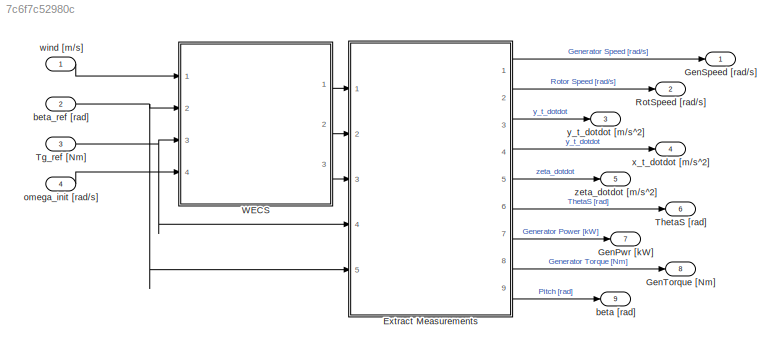
MODEL slx_7c6f7c52980c
KIND model
CONFIG AbsTol = auto
CONFIG EnableMultiTasking = off
CONFIG FixedStep = DT
CONFIG MaxStep = auto
CONFIG MinStep = auto
CONFIG RelTol = 1e-3
CONFIG SampleTimeConstraint = Unconstrained
CONFIG Solver = FixedStepAuto
CONFIG SolverName = FixedStepAuto
CONFIG StartTime = 0.0
CONFIG StopTime = 10.0
BLOCK [Outport]  RotSpeed [rad//s]
  IconDisplay = Port number
  Port = 2
  VectorParamsAs1DForOutWhenUnconnected = off
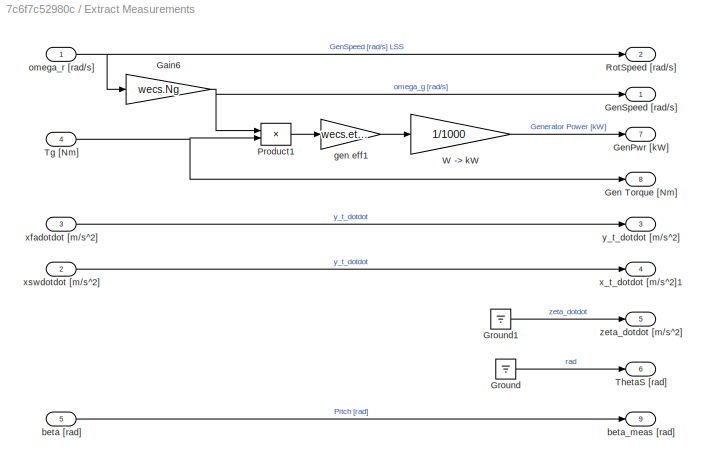
BLOCK [SubSystem] Extract Measurements
  Ports = [5, 9]
  RequestExecContextInheritance = off
BLOCK [Outport] Extract Measurements/ RotSpeed [rad//s]
  IconDisplay = Port number
  Port = 2
  VectorParamsAs1DForOutWhenUnconnected = off
BLOCK [Gain] Extract Measurements/Gain6
  Gain = wecs.Ng
  OutDataTypeStr = Inherit: Inherit via internal rule
  ParamDataTypeStr = Inherit: Inherit via internal rule
  SaturateOnIntegerOverflow = off
BLOCK [Outport] Extract Measurements/Gen Torque [Nm]  
  IconDisplay = Port number
  Port = 8
  VectorParamsAs1DForOutWhenUnconnected = off
BLOCK [Outport] Extract Measurements/GenPwr [kW]
  IconDisplay = Port number
  Port = 7
  VectorParamsAs1DForOutWhenUnconnected = off
BLOCK [Outport] Extract Measurements/GenSpeed [rad//s] 
  IconDisplay = Port number
  VectorParamsAs1DForOutWhenUnconnected = off
BLOCK [Ground] Extract Measurements/Ground
BLOCK [Ground] Extract Measurements/Ground1
BLOCK [Product] Extract Measurements/Product1
  InputSameDT = off
  OutDataTypeStr = Inherit: Inherit via internal rule
  Ports = [2, 1]
  SaturateOnIntegerOverflow = off
BLOCK [Inport] Extract Measurements/Tg [Nm]
  IconDisplay = Port number
  Port = 4
BLOCK [Outport] Extract Measurements/ThetaS [rad]
  IconDisplay = Port number
  Port = 6
  VectorParamsAs1DForOutWhenUnconnected = off
BLOCK [Gain] Extract Measurements/W -> kW
  Gain = 1/1000
  OutDataTypeStr = Inherit: Inherit via internal rule
  ParamDataTypeStr = Inherit: Inherit via internal rule
  SaturateOnIntegerOverflow = off
BLOCK [Inport] Extract Measurements/beta [rad]
  IconDisplay = Port number
  Port = 5
BLOCK [Outport] Extract Measurements/beta_meas [rad]
  IconDisplay = Port number
  Port = 9
  VectorParamsAs1DForOutWhenUnconnected = off
BLOCK [Gain] Extract Measurements/gen eff1
  Gain = wecs.etag
  OutDataTypeStr = Inherit: Inherit via internal rule
  ParamDataTypeStr = Inherit: Inherit via internal rule
  SaturateOnIntegerOverflow = off
BLOCK [Inport] Extract Measurements/omega_r [rad//s] 
  IconDisplay = Port number
BLOCK [Outport] Extract Measurements/x_t_dotdot [m//s^2]1
  IconDisplay = Port number
  Port = 4
  VectorParamsAs1DForOutWhenUnconnected = off
BLOCK [Inport] Extract Measurements/xfadotdot [m//s^2]
  IconDisplay = Port number
  Port = 3
BLOCK [Inport] Extract Measurements/xswdotdot [m//s^2]
  IconDisplay = Port number
  Port = 2
BLOCK [Outport] Extract Measurements/y_t_dotdot [m//s^2]
  IconDisplay = Port number
  Port = 3
  VectorParamsAs1DForOutWhenUnconnected = off
BLOCK [Outport] Extract Measurements/zeta_dotdot [m//s^2]
  IconDisplay = Port number
  Port = 5
  VectorParamsAs1DForOutWhenUnconnected = off
BLOCK [Outport] GenPwr [kW]
  IconDisplay = Port number
  Port = 7
  VectorParamsAs1DForOutWhenUnconnected = off
BLOCK [Outport] GenSpeed [rad//s] 
  IconDisplay = Port number
  VectorParamsAs1DForOutWhenUnconnected = off
BLOCK [Outport] GenTorque  [Nm]  
  IconDisplay = Port number
  Port = 8
  VectorParamsAs1DForOutWhenUnconnected = off
BLOCK [Inport] Tg_ref [Nm]
  IconDisplay = Port number
  Port = 3
BLOCK [Outport] ThetaS [rad]
  IconDisplay = Port number
  Port = 6
  VectorParamsAs1DForOutWhenUnconnected = off
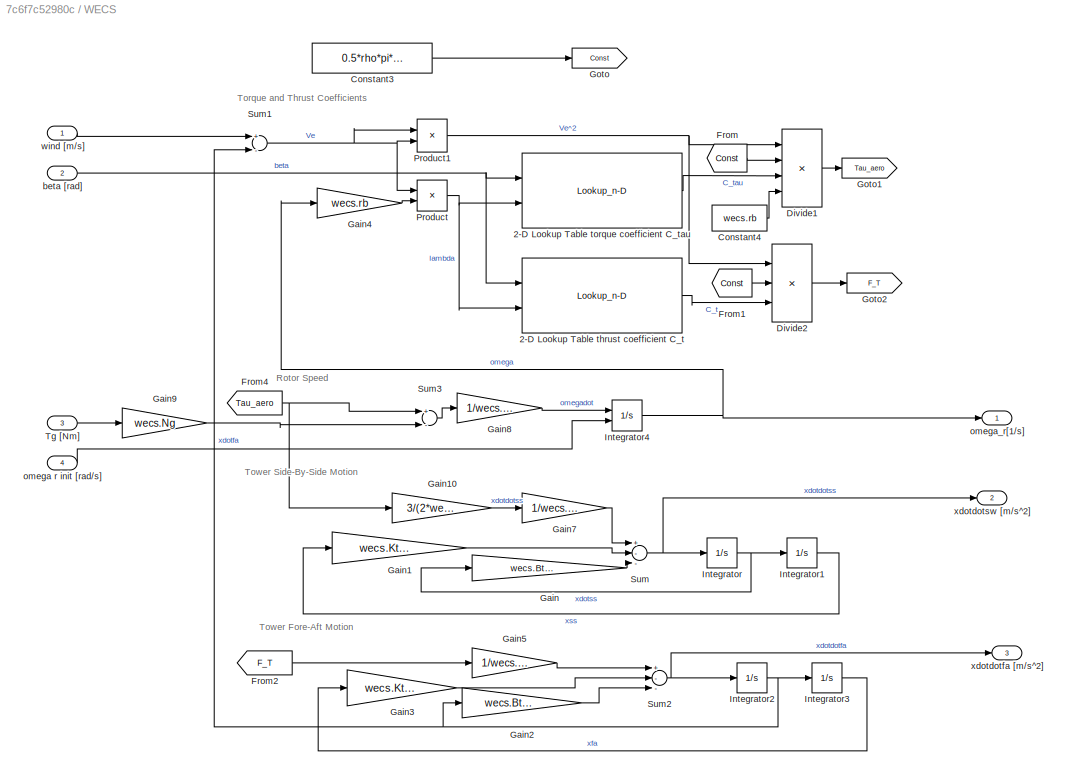
BLOCK [SubSystem] WECS
  Ports = [4, 3]
  RequestExecContextInheritance = off
BLOCK [Lookup_n-D] WECS/2-D Lookup Table thrust coefficient C_t
  BreakpointsForDimension1 = beta
  BreakpointsForDimension2 = lambda
  InternalRulePriority = Speed
  InterpMethod = Cubic spline
  Ports = [2, 1]
  RndMeth = Simplest
  Table = Ct
BLOCK [Lookup_n-D] WECS/2-D Lookup Table torque coefficient C_tau
  BreakpointsForDimension1 = beta
  BreakpointsForDimension2 = lambda
  InternalRulePriority = Speed
  InterpMethod = Cubic spline
  Ports = [2, 1]
  RndMeth = Simplest
  Table = Cq
BLOCK [Constant] WECS/Constant3
  Value = 0.5*rho*pi*wecs.rb^2
BLOCK [Constant] WECS/Constant4
  Value = wecs.rb
BLOCK [Product] WECS/Divide1
  InputSameDT = off
  Inputs = ****
  OutDataTypeStr = Inherit: Inherit via internal rule
  Ports = [4, 1]
  RndMeth = Floor
  SaturateOnIntegerOverflow = off
BLOCK [Product] WECS/Divide2
  InputSameDT = off
  Inputs = ***
  OutDataTypeStr = Inherit: Inherit via internal rule
  Ports = [3, 1]
  RndMeth = Floor
  SaturateOnIntegerOverflow = off
BLOCK [From] WECS/From
  GotoTag = Const
BLOCK [From] WECS/From1
  GotoTag = Const
BLOCK [From] WECS/From2
  GotoTag = F_T
BLOCK [From] WECS/From4
  GotoTag = Tau_aero
BLOCK [Gain] WECS/Gain
  Gain = wecs.Bt/wecs.mt
  OutDataTypeStr = Inherit: Inherit via internal rule
  ParamDataTypeStr = Inherit: Inherit via internal rule
  SaturateOnIntegerOverflow = off
BLOCK [Gain] WECS/Gain1
  Gain = wecs.Kt/wecs.mt
  OutDataTypeStr = Inherit: Inherit via internal rule
  ParamDataTypeStr = Inherit: Inherit via internal rule
  SaturateOnIntegerOverflow = off
BLOCK [Gain] WECS/Gain10
  Gain = 3/(2*wecs.H)
  OutDataTypeStr = Inherit: Inherit via internal rule
  ParamDataTypeStr = Inherit: Inherit via internal rule
  SaturateOnIntegerOverflow = off
BLOCK [Gain] WECS/Gain2
  Gain = wecs.Bt/wecs.mt
  OutDataTypeStr = Inherit: Inherit via internal rule
  ParamDataTypeStr = Inherit: Inherit via internal rule
  SaturateOnIntegerOverflow = off
BLOCK [Gain] WECS/Gain3
  Gain = wecs.Kt/wecs.mt
  OutDataTypeStr = Inherit: Inherit via internal rule
  ParamDataTypeStr = Inherit: Inherit via internal rule
  SaturateOnIntegerOverflow = off
BLOCK [Gain] WECS/Gain4
  Gain = wecs.rb
  OutDataTypeStr = Inherit: Inherit via internal rule
  ParamDataTypeStr = Inherit: Inherit via internal rule
  SaturateOnIntegerOverflow = off
BLOCK [Gain] WECS/Gain5
  Gain = 1/wecs.mt
  OutDataTypeStr = Inherit: Inherit via internal rule
  ParamDataTypeStr = Inherit: Inherit via internal rule
  SaturateOnIntegerOverflow = off
BLOCK [Gain] WECS/Gain7
  Gain = 1/wecs.mt
  OutDataTypeStr = Inherit: Inherit via internal rule
  ParamDataTypeStr = Inherit: Inherit via internal rule
  SaturateOnIntegerOverflow = off
BLOCK [Gain] WECS/Gain8
  Gain = 1/wecs.Jr
  OutDataTypeStr = Inherit: Inherit via internal rule
  ParamDataTypeStr = Inherit: Inherit via internal rule
  SaturateOnIntegerOverflow = off
BLOCK [Gain] WECS/Gain9
  Gain = wecs.Ng
  OutDataTypeStr = Inherit: Inherit via internal rule
  ParamDataTypeStr = Inherit: Inherit via internal rule
  SaturateOnIntegerOverflow = off
BLOCK [Goto] WECS/Goto
  GotoTag = Const
BLOCK [Goto] WECS/Goto1
  GotoTag = Tau_aero
BLOCK [Goto] WECS/Goto2
  GotoTag = F_T
BLOCK [Integrator] WECS/Integrator
  Ports = [1, 1]
BLOCK [Integrator] WECS/Integrator1
  Ports = [1, 1]
BLOCK [Integrator] WECS/Integrator2
  Ports = [1, 1]
BLOCK [Integrator] WECS/Integrator3
  Ports = [1, 1]
BLOCK [Integrator] WECS/Integrator4
  InitialCondition = 0.7853
  InitialConditionSource = external
  Ports = [2, 1]
BLOCK [Product] WECS/Product
  InputSameDT = off
  Inputs = /*
  OutDataTypeStr = Inherit: Inherit via internal rule
  Ports = [2, 1]
  RndMeth = Floor
  SaturateOnIntegerOverflow = off
BLOCK [Product] WECS/Product1
  InputSameDT = off
  Inputs = **
  OutDataTypeStr = Inherit: Inherit via internal rule
  Ports = [2, 1]
  RndMeth = Floor
  SaturateOnIntegerOverflow = off
BLOCK [Sum] WECS/Sum
  InputSameDT = off
  Inputs = +--
  OutDataTypeStr = Inherit: Inherit via internal rule
  Ports = [3, 1]
  SaturateOnIntegerOverflow = off
BLOCK [Sum] WECS/Sum1
  InputSameDT = off
  Inputs = +-
  OutDataTypeStr = Inherit: Inherit via internal rule
  Ports = [2, 1]
  SaturateOnIntegerOverflow = off
BLOCK [Sum] WECS/Sum2
  InputSameDT = off
  Inputs = +--
  OutDataTypeStr = Inherit: Inherit via internal rule
  Ports = [3, 1]
  SaturateOnIntegerOverflow = off
BLOCK [Sum] WECS/Sum3
  InputSameDT = off
  Inputs = +-
  OutDataTypeStr = Inherit: Inherit via internal rule
  Ports = [2, 1]
  SaturateOnIntegerOverflow = off
BLOCK [Inport] WECS/Tg [Nm]
  IconDisplay = Port number
  Port = 3
BLOCK [Inport] WECS/beta  [rad]
  IconDisplay = Port number
  Port = 2
BLOCK [Inport] WECS/omega r init [rad//s]
  IconDisplay = Port number
  Port = 4
BLOCK [Outport] WECS/omega_r[1//s]
  IconDisplay = Port number
  VectorParamsAs1DForOutWhenUnconnected = off
BLOCK [Inport] WECS/wind [m//s]
  IconDisplay = Port number
BLOCK [Outport] WECS/xdotdotfa [m//s^2]
  IconDisplay = Port number
  Port = 3
  VectorParamsAs1DForOutWhenUnconnected = off
BLOCK [Outport] WECS/xdotdotsw [m//s^2]
  IconDisplay = Port number
  Port = 2
  VectorParamsAs1DForOutWhenUnconnected = off
BLOCK [Outport] beta [rad]
  IconDisplay = Port number
  Port = 9
  VectorParamsAs1DForOutWhenUnconnected = off
BLOCK [Inport] beta_ref [rad]
  IconDisplay = Port number
  Port = 2
BLOCK [Inport] omega_init [rad//s]
  IconDisplay = Port number
  Port = 4
BLOCK [Inport] wind [m//s]
  IconDisplay = Port number
BLOCK [Outport] x_t_dotdot [m//s^2]
  IconDisplay = Port number
  Port = 4
  VectorParamsAs1DForOutWhenUnconnected = off
BLOCK [Outport] y_t_dotdot [m//s^2]
  IconDisplay = Port number
  Port = 3
  VectorParamsAs1DForOutWhenUnconnected = off
BLOCK [Outport] zeta_dotdot [m//s^2]
  IconDisplay = Port number
  Port = 5
  VectorParamsAs1DForOutWhenUnconnected = off
ANNOTATION WECS: Rotor Speed
ANNOTATION WECS: Torque and Thrust Coefficients
ANNOTATION WECS: Tower Fore-Aft Motion
ANNOTATION WECS: Tower Side-By-Side Motion
NET Extract Measurements/Gain6:1 -> Extract Measurements/GenSpeed [rad//s] :1, Extract Measurements/Product1:1
LINE Extract Measurements/Ground1:1 -> Extract Measurements/zeta_dotdot [m//s^2]:1
LINE Extract Measurements/Ground:1 -> Extract Measurements/ThetaS [rad]:1
LINE Extract Measurements/Product1:1 -> Extract Measurements/gen eff1:1
NET Extract Measurements/Tg [Nm]:1 -> Extract Measurements/Gen Torque [Nm]  :1, Extract Measurements/Product1:2
LINE Extract Measurements/W -> kW:1 -> Extract Measurements/GenPwr [kW]:1
LINE Extract Measurements/beta [rad]:1 -> Extract Measurements/beta_meas [rad]:1
LINE Extract Measurements/gen eff1:1 -> Extract Measurements/W -> kW:1
NET Extract Measurements/omega_r [rad//s] :1 -> Extract Measurements/ RotSpeed [rad//s]:1, Extract Measurements/Gain6:1
LINE Extract Measurements/xfadotdot [m//s^2]:1 -> Extract Measurements/y_t_dotdot [m//s^2]:1
LINE Extract Measurements/xswdotdot [m//s^2]:1 -> Extract Measurements/x_t_dotdot [m//s^2]1:1
LINE Extract Measurements:1 -> GenSpeed [rad//s] :1
LINE Extract Measurements:2 ->  RotSpeed [rad//s]:1
LINE Extract Measurements:3 -> y_t_dotdot [m//s^2]:1
LINE Extract Measurements:4 -> x_t_dotdot [m//s^2]:1
LINE Extract Measurements:5 -> zeta_dotdot [m//s^2]:1
LINE Extract Measurements:6 -> ThetaS [rad]:1
LINE Extract Measurements:7 -> GenPwr [kW]:1
LINE Extract Measurements:8 -> GenTorque  [Nm]  :1
LINE Extract Measurements:9 -> beta [rad]:1
NET Tg_ref [Nm]:1 -> Extract Measurements:4, WECS:3
LINE WECS/2-D Lookup Table thrust coefficient C_t:1 -> WECS/Divide2:3
LINE WECS/2-D Lookup Table torque coefficient C_tau:1 -> WECS/Divide1:3
LINE WECS/Constant3:1 -> WECS/Goto:1
LINE WECS/Constant4:1 -> WECS/Divide1:4
LINE WECS/Divide1:1 -> WECS/Goto1:1
LINE WECS/Divide2:1 -> WECS/Goto2:1
LINE WECS/From1:1 -> WECS/Divide2:2
LINE WECS/From2:1 -> WECS/Gain5:1
NET WECS/From4:1 -> WECS/Gain10:1, WECS/Sum3:1
LINE WECS/From:1 -> WECS/Divide1:2
LINE WECS/Gain10:1 -> WECS/Gain7:1
LINE WECS/Gain1:1 -> WECS/Sum:2
LINE WECS/Gain2:1 -> WECS/Sum2:3
LINE WECS/Gain3:1 -> WECS/Sum2:2
LINE WECS/Gain4:1 -> WECS/Product:2
LINE WECS/Gain5:1 -> WECS/Sum2:1
LINE WECS/Gain7:1 -> WECS/Sum:1
LINE WECS/Gain8:1 -> WECS/Integrator4:1
LINE WECS/Gain9:1 -> WECS/Sum3:2
LINE WECS/Gain:1 -> WECS/Sum:3
LINE WECS/Integrator1:1 -> WECS/Gain1:1
NET WECS/Integrator2:1 -> WECS/Gain2:1, WECS/Integrator3:1, WECS/Sum1:2
LINE WECS/Integrator3:1 -> WECS/Gain3:1
NET WECS/Integrator4:1 -> WECS/Gain4:1, WECS/omega_r[1//s]:1
NET WECS/Integrator:1 -> WECS/Gain:1, WECS/Integrator1:1
NET WECS/Product1:1 -> WECS/Divide1:1, WECS/Divide2:1
NET WECS/Product:1 -> WECS/2-D Lookup Table thrust coefficient C_t:2, WECS/2-D Lookup Table torque coefficient C_tau:2
NET WECS/Sum1:1 -> WECS/Product1:1, WECS/Product1:2, WECS/Product:1
NET WECS/Sum2:1 -> WECS/Integrator2:1, WECS/xdotdotfa [m//s^2]:1
LINE WECS/Sum3:1 -> WECS/Gain8:1
NET WECS/Sum:1 -> WECS/Integrator:1, WECS/xdotdotsw [m//s^2]:1
LINE WECS/Tg [Nm]:1 -> WECS/Gain9:1
NET WECS/beta  [rad]:1 -> WECS/2-D Lookup Table thrust coefficient C_t:1, WECS/2-D Lookup Table torque coefficient C_tau:1
LINE WECS/omega r init [rad//s]:1 -> WECS/Integrator4:2
LINE WECS/wind [m//s]:1 -> WECS/Sum1:1
LINE WECS:1 -> Extract Measurements:1
LINE WECS:2 -> Extract Measurements:2
LINE WECS:3 -> Extract Measurements:3
NET beta_ref [rad]:1 -> Extract Measurements:5, WECS:2
LINE omega_init [rad//s]:1 -> WECS:4
LINE wind [m//s]:1 -> WECS:1
note: NET lines group one-source signal fan-out (src -> all destinations, sorted); 1:1 wires keep LINE
